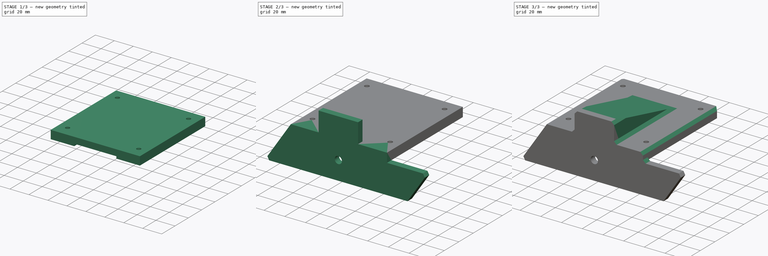
[diagram: build sequence overview — one tinted view per stage of 3, left to right]
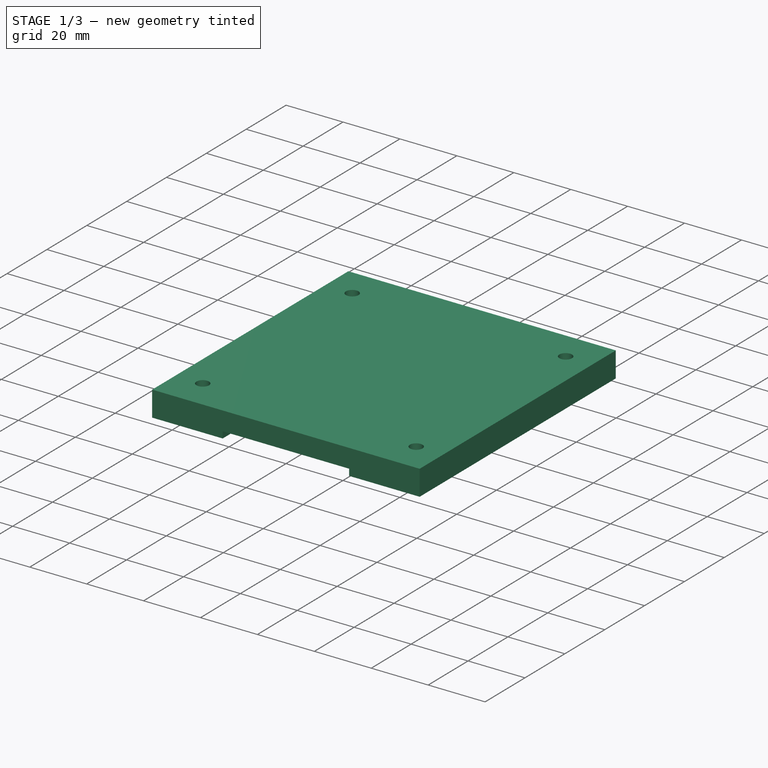
[diagram: stage 1 of 3 — iso view after this stage's code; geometry added in this stage tinted green]
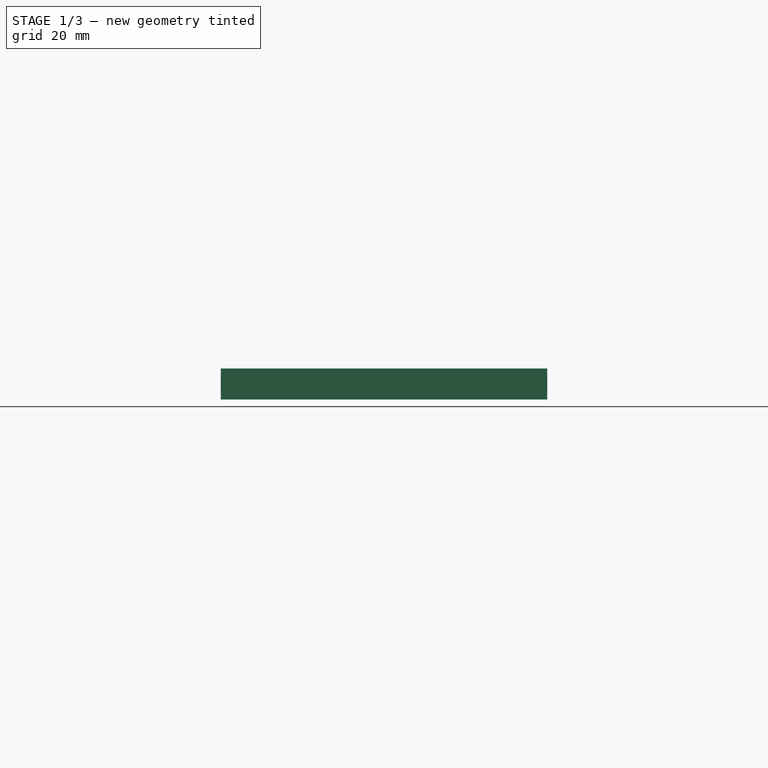
[diagram: stage 1 of 3 — front view after this stage's code; geometry added in this stage tinted green]
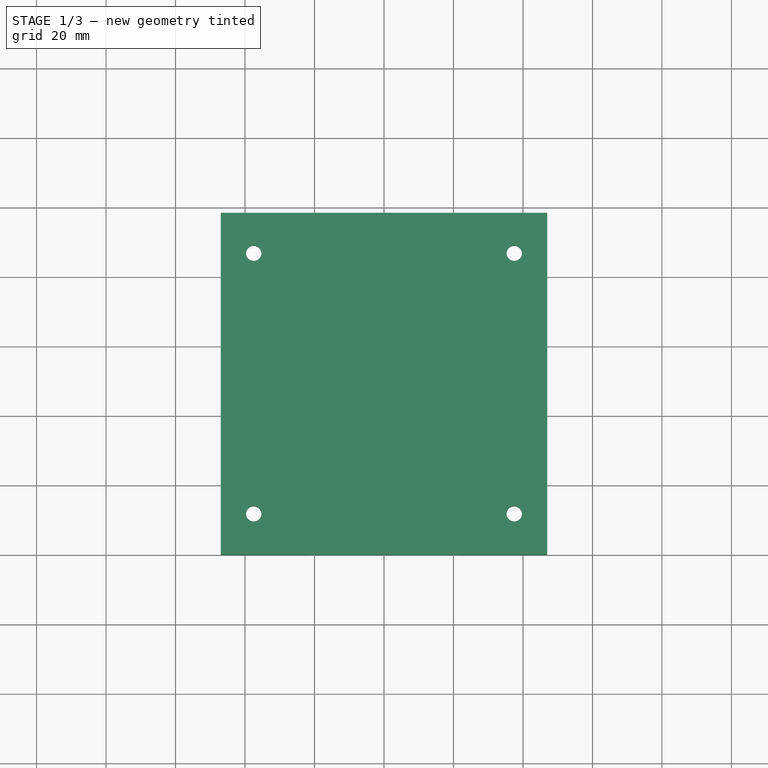
[diagram: stage 1 of 3 — top view after this stage's code; geometry added in this stage tinted green]
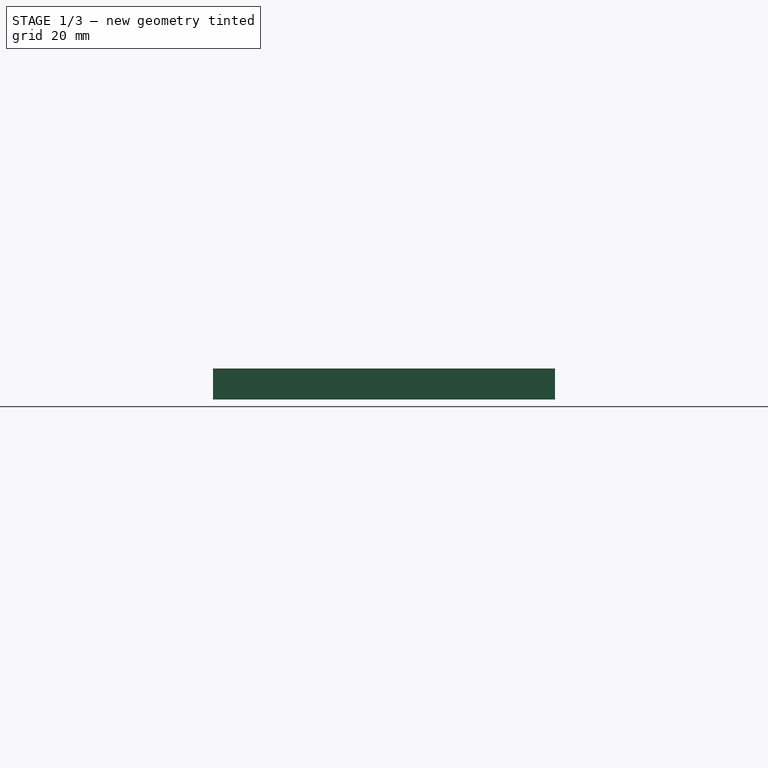
[diagram: stage 1 of 3 — right view after this stage's code; geometry added in this stage tinted green]
FCSTD DOCUMENT  (FreeCAD 0.21R31917 (Git))
Label: lilliput monitor mount part 2
License: All rights reserved
LicenseURL: http://en.wikipedia.org/wiki/All_rights_reserved
objects: Sketcher::SketchObject×4, PartDesign::Chamfer×3, PartDesign::Pad×2, PartDesign::Pocket×2, PartDesign::CoordinateSystem×1, PartDesign::Body×1
note: 20 computed .brp shape members not serialized (recipe doc carries the construction recipe); baked Part::Feature solids carry a one-line shape summary decoded from their .brp

FEATURE [Sketcher::SketchObject] Sketch  label="VESA"
  FullyConstrained = true
  MapMode = 5
  Support = -> [XY_Plane]
  expr: .Constraints.VESATowerWidth = 1.85" * 2
  sketch-geometry (11):
    g0: Circle CenterX=37.5 CenterY=86.811 CenterZ=0 NormalX=0 NormalY=0 NormalZ=1 AngleXU=0 Radius=2.2225
    g1: Circle CenterX=-37.5 CenterY=86.811 CenterZ=0 NormalX=0 NormalY=0 NormalZ=1 AngleXU=0 Radius=2.2225
    g2: LineSegment StartX=-37.5 StartY=86.811 StartZ=0 EndX=37.5 EndY=86.811 EndZ=0
    g3: LineSegment StartX=37.5 StartY=86.811 StartZ=0 EndX=37.5 EndY=11.811 EndZ=0
    g4: LineSegment StartX=-37.5 StartY=86.811 StartZ=0 EndX=-37.5 EndY=11.811 EndZ=0
    g5: Circle CenterX=-37.5 CenterY=11.811 CenterZ=0 NormalX=0 NormalY=0 NormalZ=1 AngleXU=0 Radius=2.2225
    g6: Circle CenterX=37.5 CenterY=11.811 CenterZ=0 NormalX=0 NormalY=0 NormalZ=1 AngleXU=0 Radius=2.2225
    g7: LineSegment StartX=-46.99 StartY=0 StartZ=0 EndX=46.99 EndY=0 EndZ=0
    g8: LineSegment StartX=46.99 StartY=0 StartZ=0 EndX=46.99 EndY=98.425 EndZ=0
    g9: LineSegment StartX=46.99 StartY=98.425 StartZ=0 EndX=-46.99 EndY=98.425 EndZ=0
    g10: LineSegment StartX=-46.99 StartY=98.425 StartZ=0 EndX=-46.99 EndY=0 EndZ=0
  constraints (28):
    c: Coincident(g2,g1)
    c: Coincident(g2,g0)
    c: Coincident(g3,g0)
    c: Vertical(g3)
    c: Coincident(g4,g1)
    c: Vertical(g4)
    c: Coincident(g5,g4)
    c: Coincident(g6,g3)
    c: Equal(g5,g1)
    c: Equal(g1,g0)
    c: Equal(g0,g6)
    c: Equal(g3,g2)
    c: Equal(g2,g4)
    c: Symmetric(g1,g0,g-2)
    c: DistanceY(g6,g0) = 75
    c: Diameter(g0) = 4.445
    c: DistanceY(g-1,g6) = 11.811  'VesaZOffset'
    c: Coincident(g7,g8)
    c: Coincident(g8,g9)
    c: Coincident(g9,g10)
    c: Coincident(g10,g7)
    c: Horizontal(g7)
    c: Vertical(g8)
    c: Vertical(g10)
    c: PointOnObject(g7,g-1)
    c: Symmetric(g8,g9,g-2)
    c: DistanceY(g7,g9) = 98.425
    c: DistanceX(g9,g8) = 93.98  'VESATowerWidth'
FEATURE [PartDesign::Pad] Pad  label="VESAPad"
  Direction = (0,0,1)
  Length = 8.89
  Length2 = 10
  Profile = -> Sketch
  ReferenceAxis = -> Sketch [N_Axis]
  Type = 0
FEATURE [Sketcher::SketchObject] Sketch001  label="SlideMountRelief"
  FullyConstrained = true
  MapMode = 5
  Support = -> [XY_Plane]
  sketch-geometry (4):
    g0: LineSegment StartX=22.225 StartY=0 StartZ=0 EndX=-22.225 EndY=0 EndZ=0
    g1: LineSegment StartX=-22.225 StartY=0 StartZ=0 EndX=-22.225 EndY=74.93 EndZ=0
    g2: LineSegment StartX=-22.225 StartY=74.93 StartZ=0 EndX=22.225 EndY=74.93 EndZ=0
    g3: LineSegment StartX=22.225 StartY=74.93 StartZ=0 EndX=22.225 EndY=0 EndZ=0
  constraints (11):
    c: Coincident(g0,g1)
    c: Coincident(g1,g2)
    c: Coincident(g2,g3)
    c: Coincident(g3,g0)
    c: Horizontal(g0)
    c: Vertical(g1)
    c: Vertical(g3)
    c: PointOnObject(g0,g-1)
    c: Symmetric(g2,g1,g-2)
    c: DistanceX(g1,g2) = 44.45
    c: DistanceY(g0,g1) = 74.93
FEATURE [PartDesign::Pocket] Pocket  label="SlideMountReliefPocket"
  BaseFeature = -> Pad
  Direction = (0,0,-1)
  Length = 2.286
  Length2 = 5
  Profile = -> Sketch001
  ReferenceAxis = -> Sketch001 [N_Axis]
  Reversed = true
  Type = 0
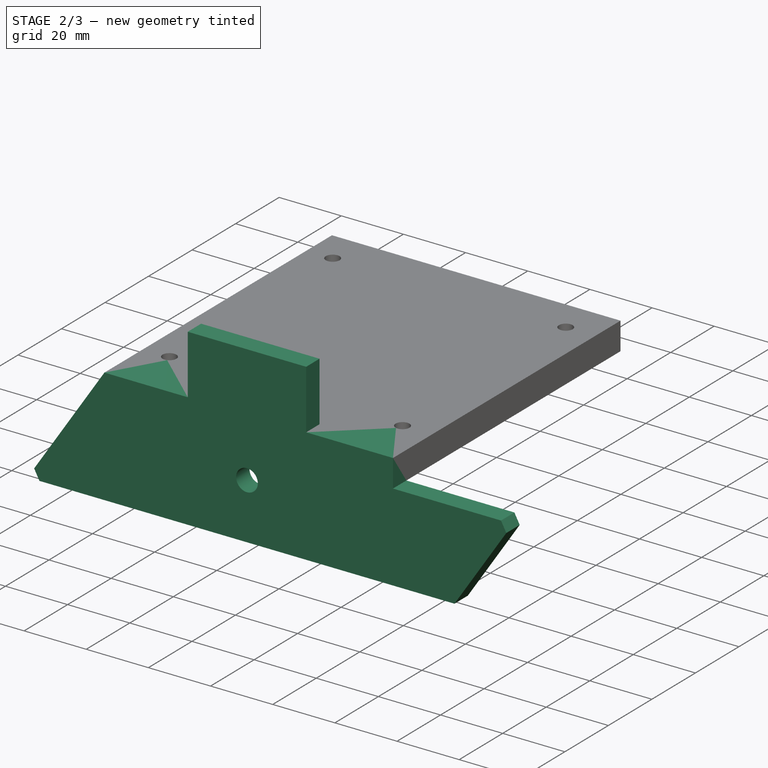
[diagram: stage 2 of 3 — iso view after this stage's code; geometry added in this stage tinted green]
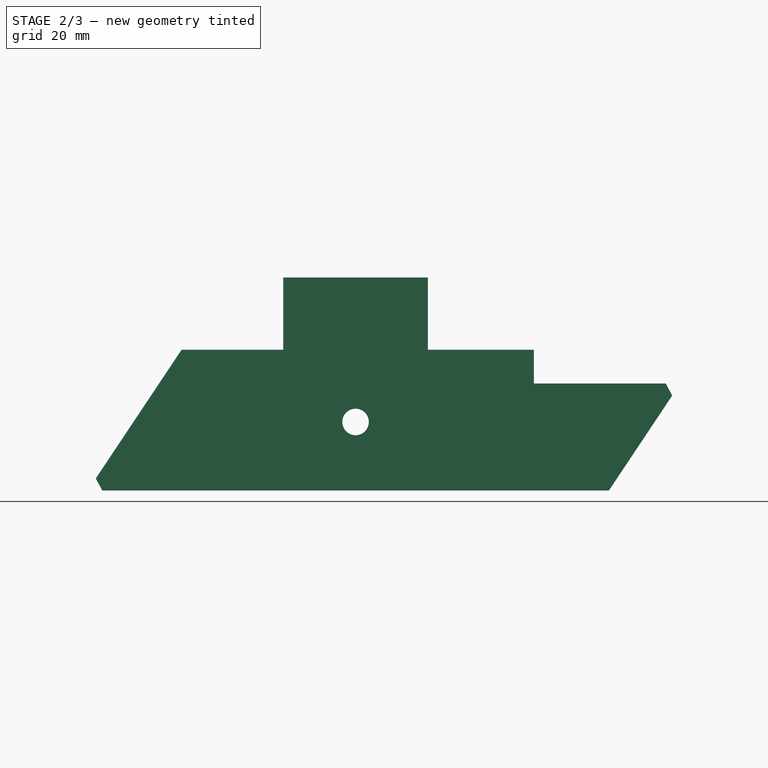
[diagram: stage 2 of 3 — front view after this stage's code; geometry added in this stage tinted green]
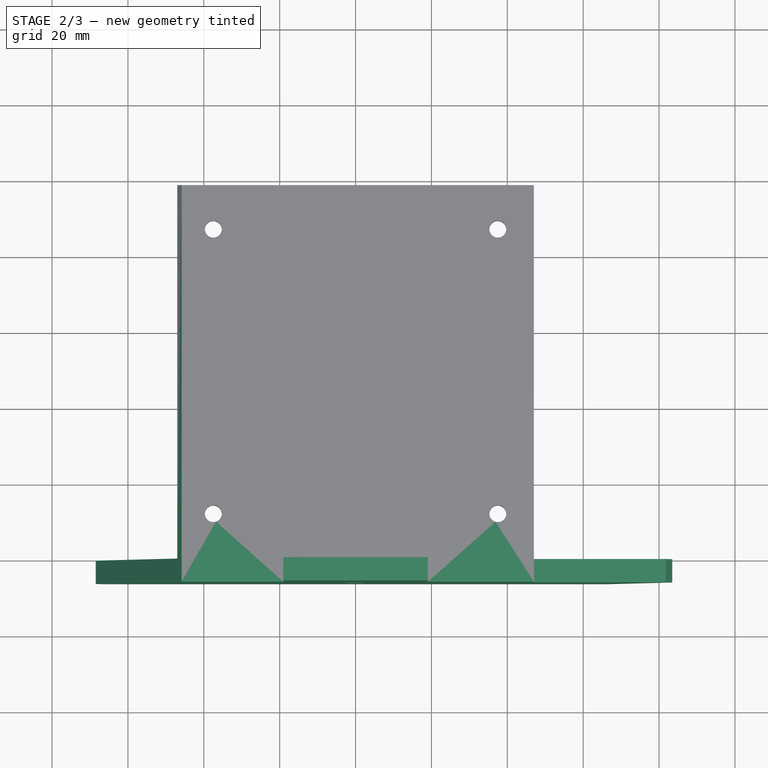
[diagram: stage 2 of 3 — top view after this stage's code; geometry added in this stage tinted green]
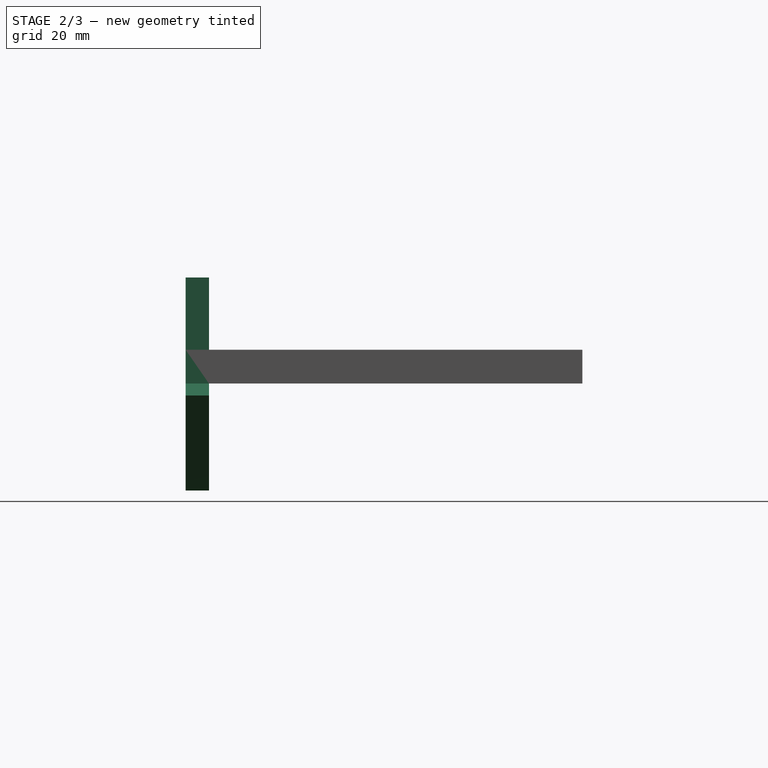
[diagram: stage 2 of 3 — right view after this stage's code; geometry added in this stage tinted green]
FEATURE [Sketcher::SketchObject] Sketch002  label="BasePlate"
  FullyConstrained = true
  MapMode = 5
  Placement = pos=(0,0,0) rot=(1,0,0;1.5708rad)
  Support = -> [XZ_Plane]
  expr: .Constraints.FrontShelfLen = 1.2" - <<SlideMountReliefPocket>>.Length
  expr: Constraints[2] = 0.489" - <<SlideMountReliefPocket>>.Length
  expr: Constraints[34] = <<VESAPad>>.Length
  expr: Constraints[35] = <<VESA>>.Constraints.VESATowerWidth
  sketch-geometry (19):
    g0: Circle CenterX=0 CenterY=-10.1346 CenterZ=0 NormalX=0 NormalY=0 NormalZ=1 AngleXU=0 Radius=3.4925
    g1: LineSegment StartX=66.7766 StartY=0 StartZ=0 EndX=-66.7766 EndY=0 EndZ=0
    g2: LineSegment StartX=-66.7766 StartY=0 StartZ=0 EndX=-66.7766 EndY=-28.194 EndZ=0
    g3: LineSegment StartX=-66.7766 StartY=-28.194 StartZ=0 EndX=66.7766 EndY=-28.194 EndZ=0
    g4: LineSegment StartX=66.7766 StartY=-28.194 StartZ=0 EndX=66.7766 EndY=0 EndZ=0
    g5: LineSegment StartX=-66.7766 StartY=0 StartZ=0 EndX=-46.99 EndY=0 EndZ=0
    g6: LineSegment StartX=-46.99 StartY=0 StartZ=0 EndX=-46.99 EndY=8.89 EndZ=0
    g7: LineSegment StartX=-46.99 StartY=8.89 StartZ=0 EndX=-19.05 EndY=8.89 EndZ=0
    g8: LineSegment StartX=-19.05 StartY=8.89 StartZ=0 EndX=-19.05 EndY=27.94 EndZ=0
    g9: LineSegment StartX=-19.05 StartY=27.94 StartZ=0 EndX=19.05 EndY=27.94 EndZ=0
    g10: LineSegment StartX=19.05 StartY=27.94 StartZ=0 EndX=19.05 EndY=8.89 EndZ=0
    g11: LineSegment StartX=19.05 StartY=8.89 StartZ=0 EndX=46.99 EndY=8.89 EndZ=0
    g12: LineSegment StartX=46.99 StartY=8.89 StartZ=0 EndX=46.99 EndY=0 EndZ=0
    g13: LineSegment StartX=46.99 StartY=0 StartZ=0 EndX=66.7766 EndY=0 EndZ=0
    g14: LineSegment StartX=66.7766 StartY=-28.194 StartZ=0 EndX=85.5726 EndY=0 EndZ=0
    g15: LineSegment StartX=46.99 StartY=0 StartZ=0 EndX=85.5726 EndY=0 EndZ=0
    g16: LineSegment StartX=-70.5866 StartY=-28.194 StartZ=0 EndX=-45.864 EndY=8.89 EndZ=0
    g17: LineSegment StartX=-45.864 StartY=8.89 StartZ=0 EndX=-19.05 EndY=8.89 EndZ=0
    g18: LineSegment StartX=66.7766 StartY=-28.194 StartZ=0 EndX=-70.5866 EndY=-28.194 EndZ=0
  constraints (51):
    c: PointOnObject(g0,g-2)
    c: Diameter(g0) = 6.985
    c: DistanceY(g0,g-1) = 10.1346
    c: Coincident(g1,g2)
    c: Coincident(g2,g3)
    c: Coincident(g3,g4)
    c: Coincident(g4,g1)
    c: Horizontal(g3)
    c: Vertical(g2)
    c: Vertical(g4)
    c: PointOnObject(g1,g-1)
    c: Symmetric(g1,g1,g-2)
    c: DistanceY(g3,g-1) = 28.194  'FrontShelfLen'
    c: DistanceX(g2,g3) = 133.553
    c: Coincident(g2,g5)
    c: PointOnObject(g5,g1)
    c: Coincident(g5,g6)
    c: Vertical(g6)
    c: Coincident(g6,g7)
    c: Horizontal(g7)
    c: Coincident(g7,g8)
    c: Vertical(g8)
    c: Coincident(g8,g9)
    c: Coincident(g9,g10)
    c: Vertical(g10)
    c: Coincident(g10,g11)
    c: Horizontal(g11)
    c: Coincident(g11,g12)
    c: PointOnObject(g12,g1)
    c: Coincident(g12,g13)
    c: Coincident(g13,g4)
    c: Vertical(g12)
    c: Symmetric(g11,g6,g-2)
    c: Symmetric(g9,g8,g-2)
    c: DistanceY(g5,g6) = 8.89
    c: DistanceX(g6,g11) = 93.98
    c: DistanceX(g8,g9) = 38.1
    c: DistanceY(g10,g9) = 19.05
    c: Coincident(g14,g3)
    c: Angle(g14,g3) = 2.1588
    c: Coincident(g15,g12)
    c: Coincident(g15,g14)
    c: Horizontal(g15)
    c: Angle(g3,g16) = 0.982795
    c: PointOnObject(g16,g7)
    c: Coincident(g17,g16)
    c: Coincident(g17,g8)
    c: Coincident(g18,g14)
    c: Coincident(g18,g16)
    c: Horizontal(g18)
    c: DistanceX(g16,g14) = 137.363
FEATURE [PartDesign::Pad] Pad001  label="BasePlatePad"
  BaseFeature = -> Pocket
  Direction = (0,-1,-2e-16)
  Length = 6.147
  Length2 = 10
  Profile = -> Sketch002
  ReferenceAxis = -> Sketch002 [N_Axis]
  Type = 0
FEATURE [PartDesign::CoordinateSystem] Local_CS  label="LCS_FrontFace"
  AttacherType = Attacher::AttachEngine3D
  AttachmentOffset = pos=(0,0,-28.194) rot=(0,0,1;0rad)
  MapMode = 5
  Placement = pos=(0,0,-28.194) rot=(0,0,1;0rad)
  Support = -> [XY_Plane]
  expr: .AttachmentOffset.Base.z = -(1.2" - <<SlideMountReliefPocket>>.Length)
FEATURE [Sketcher::SketchObject] Sketch003  label="HackyEdgeCleanup"
  ExternalGeometry = -> [Pad001]
  FullyConstrained = false
  MapMode = 5
  Placement = pos=(0,0,0) rot=(1,0,0;1.5708rad)
  Support = -> [XZ_Plane]
  sketch-geometry (4):
    g0: LineSegment StartX=-45.864 StartY=8.89 StartZ=0 EndX=-45.864 EndY=18.3608 EndZ=0
    g1: LineSegment StartX=-45.864 StartY=18.3608 StartZ=0 EndX=-55.5022 EndY=18.3608 EndZ=0
    g2: LineSegment StartX=-55.5022 StartY=18.3608 StartZ=0 EndX=-55.5022 EndY=-5.56733 EndZ=0
    g3: LineSegment StartX=-55.5022 StartY=-5.56733 StartZ=0 EndX=-45.864 EndY=8.89 EndZ=0
  constraints (9):
    c: Coincident(g-3,g0)
    c: Vertical(g0)
    c: Coincident(g0,g1)
    c: Horizontal(g1)
    c: Coincident(g1,g2)
    c: PointOnObject(g2,g-3)
    c: Vertical(g2)
    c: Coincident(g2,g3)
    c: Coincident(g3,g0)
FEATURE [PartDesign::Pocket] Pocket001  label="HackyEdgeCleanupPocket"
  BaseFeature = -> Pad001
  Direction = (0,1,2e-16)
  Length = 5
  Length2 = 5
  Profile = -> Sketch003
  ReferenceAxis = -> Sketch003 [N_Axis]
  Type = 1
FEATURE [PartDesign::Chamfer] Chamfer
  Angle = 45
  Base = -> Pocket001 [Edge1,Edge33]
  BaseFeature = -> Pocket001
  ChamferType = 0
  FlipDirection = false
  Refine = true
  Size = 3.81
  Size2 = 1
  SupportTransform = false
  UseAllEdges = false
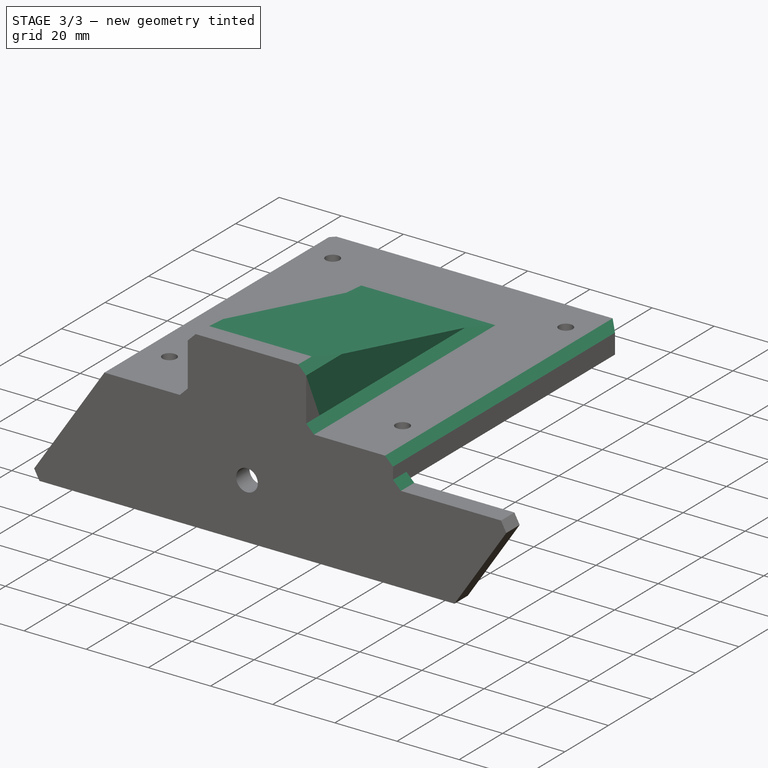
[diagram: stage 3 of 3 — iso view after this stage's code; geometry added in this stage tinted green]
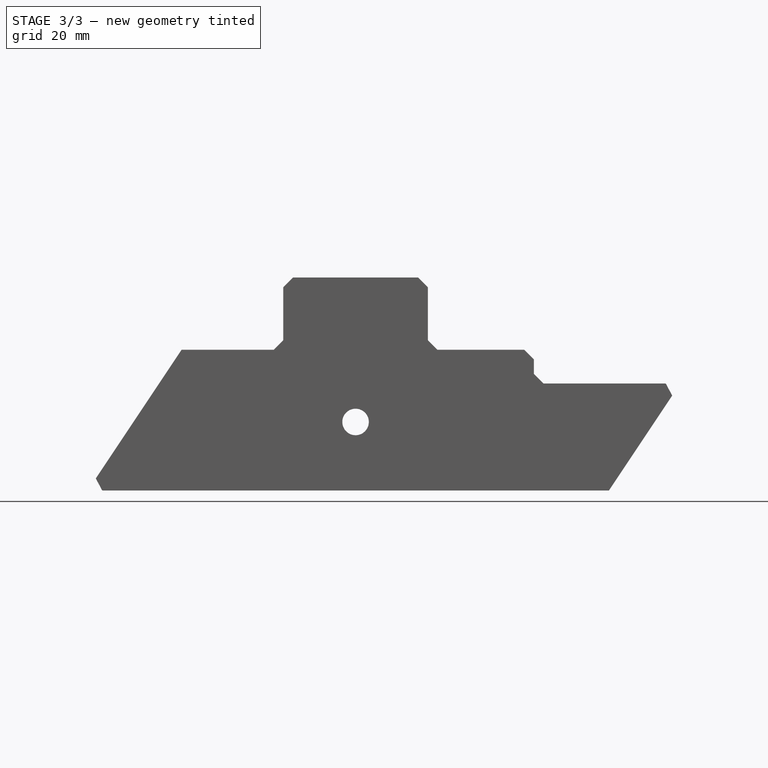
[diagram: stage 3 of 3 — front view after this stage's code; geometry added in this stage tinted green]
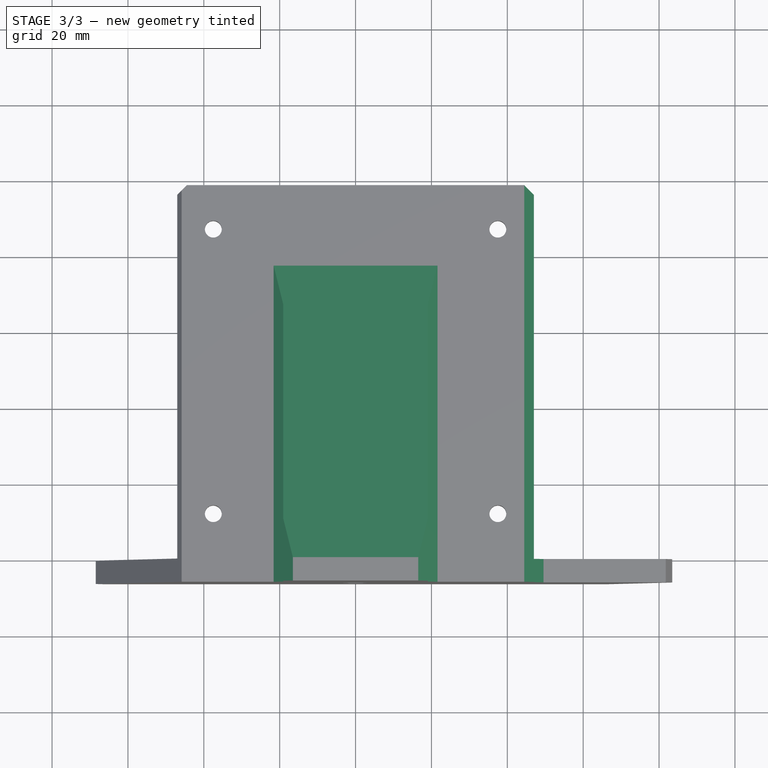
[diagram: stage 3 of 3 — top view after this stage's code; geometry added in this stage tinted green]
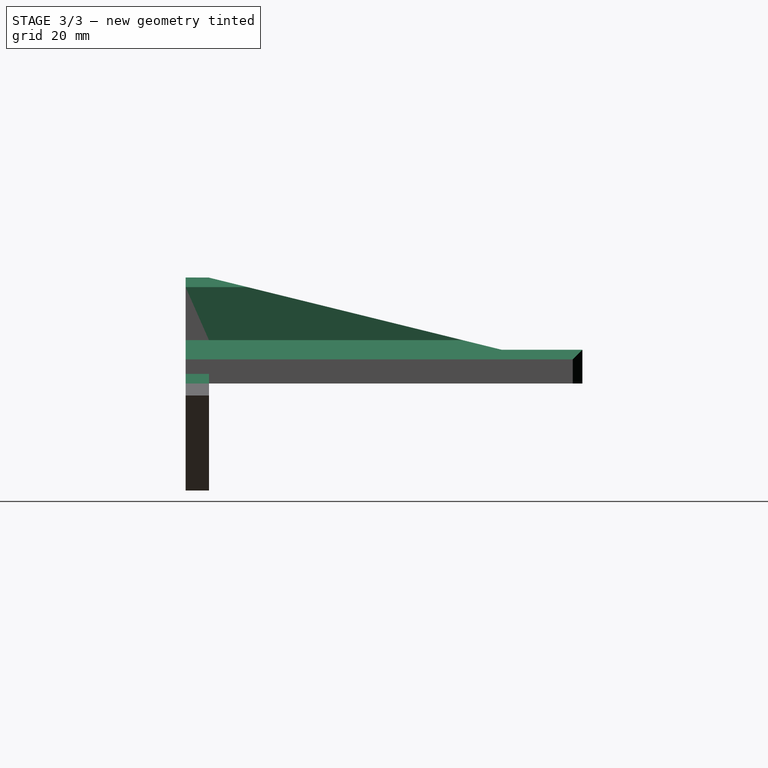
[diagram: stage 3 of 3 — right view after this stage's code; geometry added in this stage tinted green]
FEATURE [PartDesign::Chamfer] Chamfer001  label="BackSupport"
  Angle = 45
  Base = -> Chamfer [Edge69]
  BaseFeature = -> Chamfer
  ChamferType = 1
  FlipDirection = false
  Refine = true
  Size = 19.0246
  Size2 = 77.1906
  SupportTransform = false
  UseAllEdges = false
FEATURE [PartDesign::Chamfer] Chamfer002
  Angle = 45
  Base = -> Chamfer001 [Edge4,Edge6,Edge39,Edge40,Edge17,Edge15,Edge12,Edge3,Edge20,Edge41]
  BaseFeature = -> Chamfer001
  ChamferType = 0
  FlipDirection = false
  Size = 2.54
  Size2 = 1
  SupportTransform = false
  UseAllEdges = false
FEATURE [PartDesign::Body] Body
  Group = -> [Sketch,Pad,Sketch001,Pocket,Sketch002,Pad001,Local_CS,Sketch003,Pocket001,Chamfer,Chamfer001,Chamfer002]
  Origin = -> Origin
  Tip = -> Chamfer002
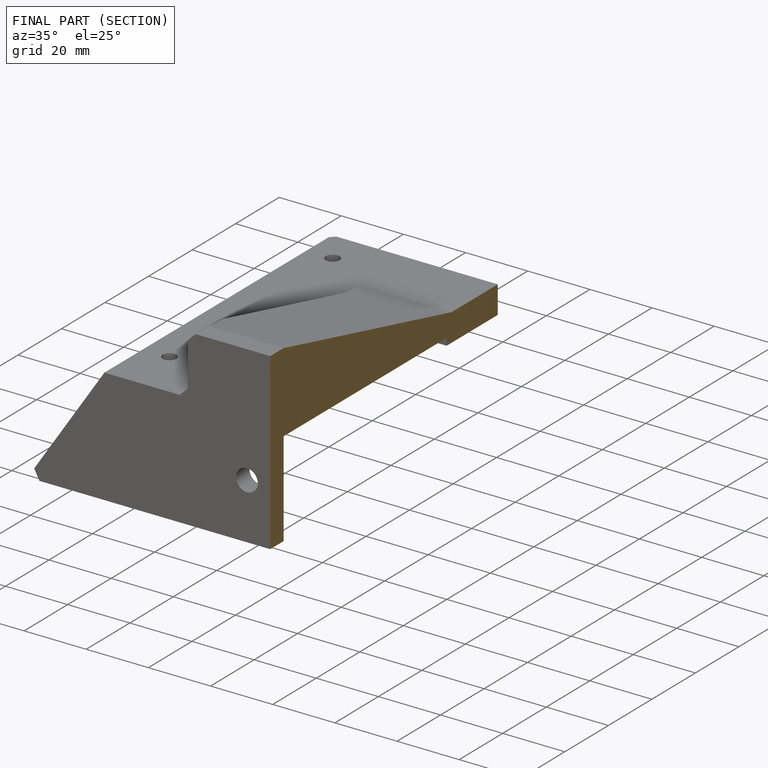
[diagram: finished part — half-section view (interior)]
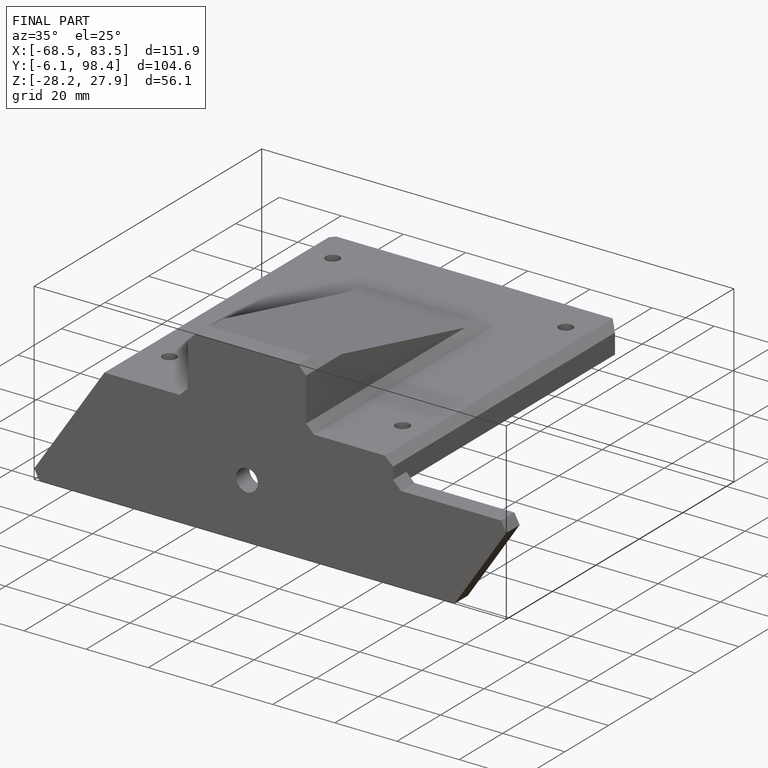
[diagram: finished part — iso view with bounding-box wireframe]
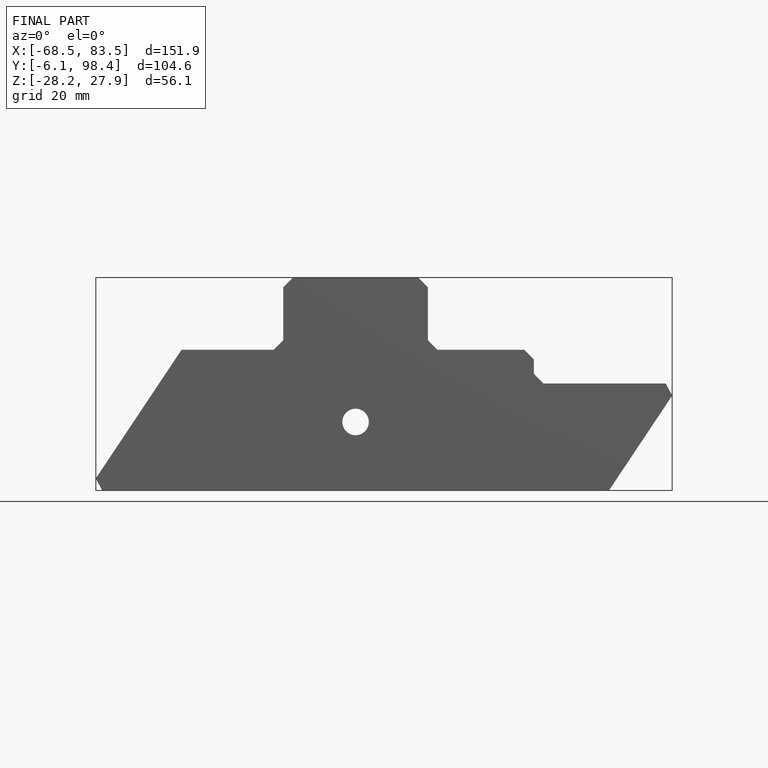
[diagram: finished part — front view with bounding-box wireframe]
